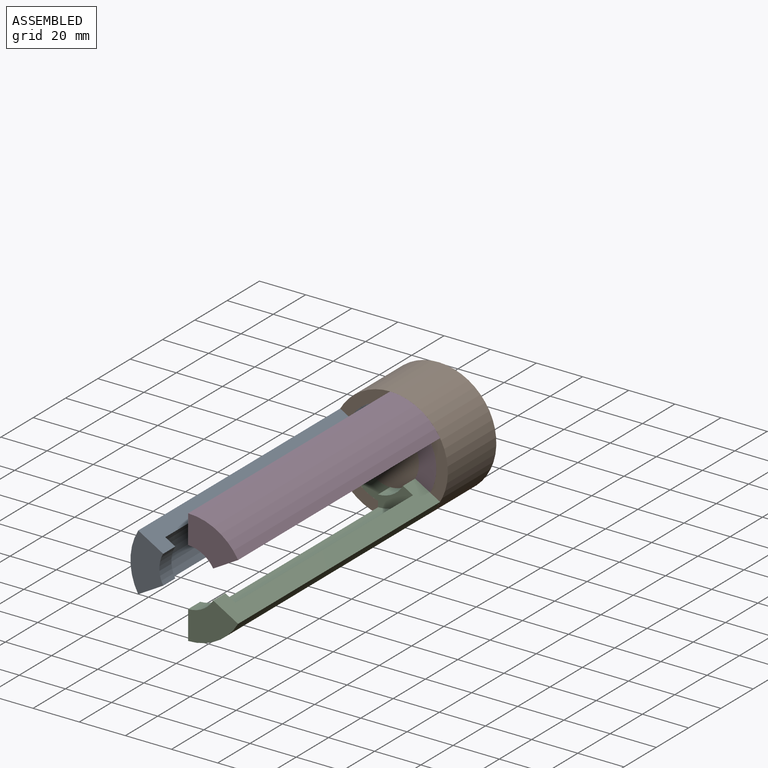
[diagram: assembled view]
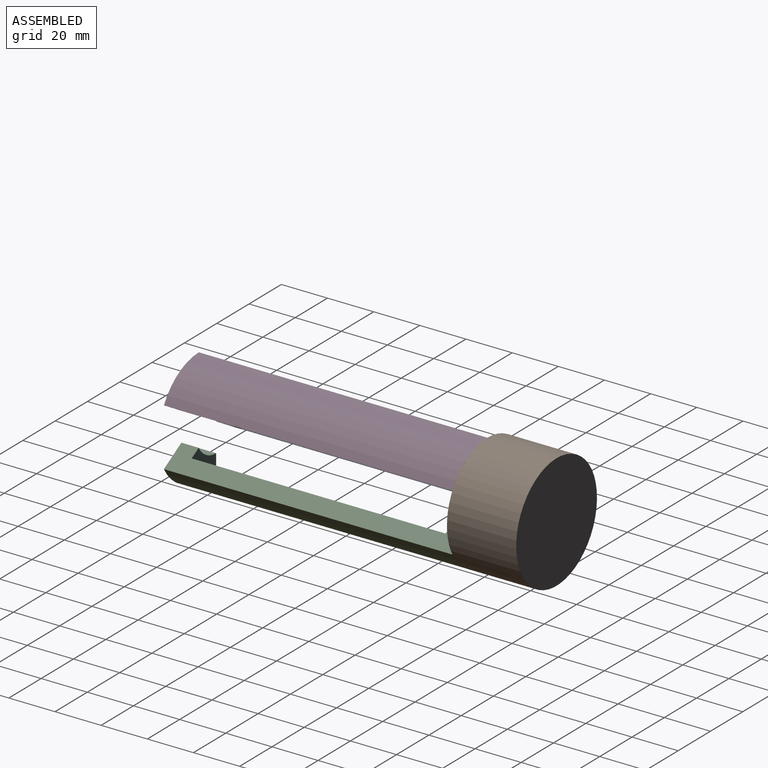
[diagram: assembled view, second angle]
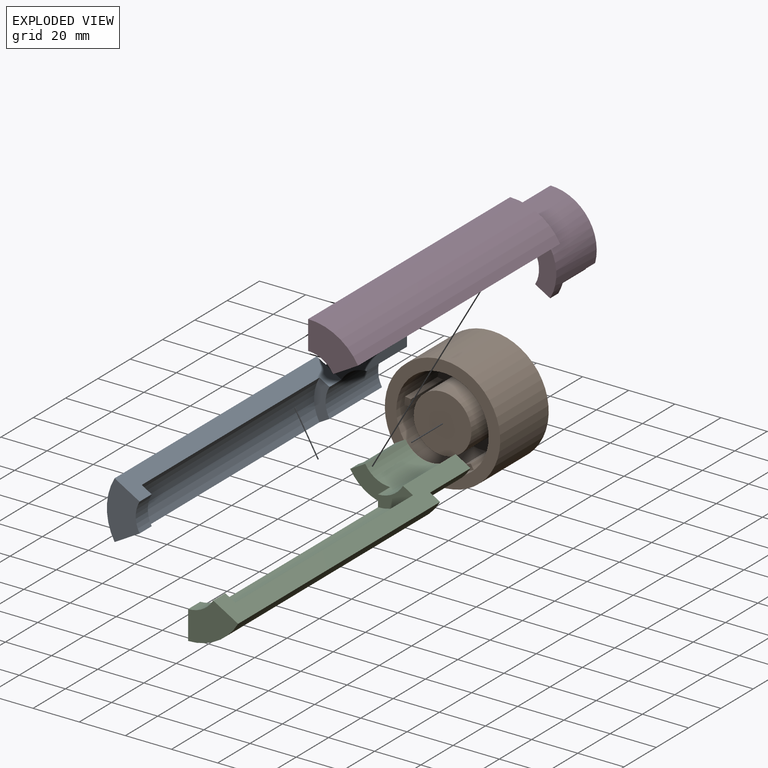
[diagram: exploded view]
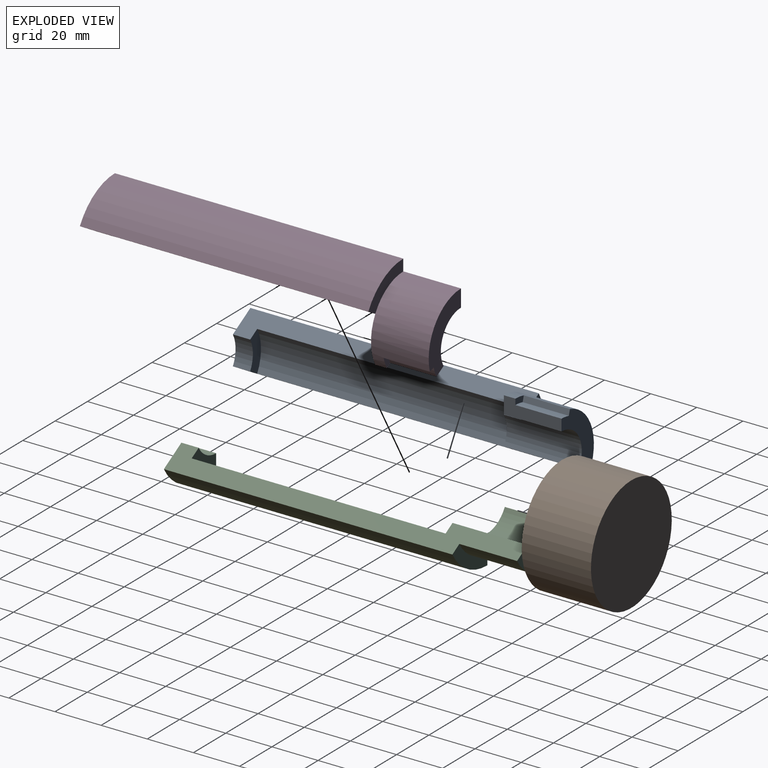
[diagram: exploded view, second angle]
ASSEMBLY  parts=4 mates=3
PART A: 17 faces, bbox 32.5x150x25 mm
  f0: cylinder r=20mm len=30mm, axis (0,1,0), area 942.5mm2, adj f1,f4,f7,f8,f10,f15,f16
  f1: plane 150x10.83mm, normal (0.87,0,0.5), area 1200mm2, adj f0,f2,f5,f6,f7,f8,f9,f11
  f2: cylinder r=12.5mm len=32.5mm, axis (0,1,0), area 752.7mm2, adj f1,f3,f4,f7,f10,f12
  f3: plane 125x10.83mm, normal (-0.87,0,0.5), area 1012.5mm2, adj f2,f5,f6,f8,f9,f10,f11,f12
  f4: plane 25x7.5mm, normal (0,0,1), area 137.5mm2, adj f0,f2,f7,f10,f14,f16
  f5: plane 25x14.17mm, normal (0,-1,0), area 245.4mm2, adj f1,f3,f6,f9
  f6: cylinder r=25mm len=125mm, axis (0,1,0), area 3272.5mm2, adj f1,f3,f5,f8
  f7: plane 29.32x20mm, normal (0,1,0), area 243mm2, adj f0,f1,f2,f4,f14,f15
  f8: plane 25x7.68mm, normal (0,1,0), area 117.8mm2, adj f0,f1,f3,f6
  f9: cylinder r=12.5mm len=12.5mm, axis (0,1,0), area 98.2mm2, adj f1,f3,f5,f13
  f10: plane 17.32x13.75mm, normal (0,-1,0), area 127.6mm2, adj f0,f2,f3,f4
  f11: cylinder r=17.5mm len=110mm, axis (0,-1,0), area 2015.9mm2, adj f1,f3,f12,f13
  f12: plane 17.5x6.67mm, normal (0,-1,0), area 78.5mm2, adj f1,f2,f3,f11
  f13: plane 17.5x6.67mm, normal (0,1,0), area 78.5mm2, adj f1,f3,f9,f11
  f14: cylinder r=17.5mm len=20mm, axis (0,1,0), area 91.6mm2, adj f4,f7,f15,f16
  f15: plane 20x2.42mm, normal (-0.26,0,0.97), area 50mm2, adj f0,f7,f14,f16
  f16: plane 5.18x3.1mm, normal (0,1,0), area 12.3mm2, adj f0,f4,f14,f15
PART B: 19 faces, bbox 50x30x50 mm
  f0: cylinder r=20mm len=40mm, axis (0,1,0), area 2932.2mm2, adj f3,f4,f5,f7,f8,f9,f11,f12
  f1: cylinder r=25mm len=50mm, axis (0,1,0), area 4712.4mm2, adj f2,f3
  f2: plane 50x50mm, normal (0,-1,0), area 1963.5mm2, adj f1
  f3: plane 50x50mm, normal (0,1,0), area 706.9mm2, adj f0,f1
  f4: plane 40x40mm, normal (0,1,0), area 741.2mm2, adj f0,f5,f6,f7,f9,f10,f11,f13
  f5: plane 20x2.5mm, normal (1,0,0), area 50mm2, adj f0,f4,f6,f8
  f6: cylinder r=17.5mm len=20mm, axis (0,-1,0), area 61.1mm2, adj f4,f5,f7,f8
  f7: plane 20x2.46mm, normal (-0.98,0,-0.17), area 50mm2, adj f0,f4,f6,f8
  f8: plane 3.47x2.77mm, normal (0,1,0), area 8.2mm2, adj f0,f5,f6,f7
  f9: plane 20x2.17mm, normal (-0.5,0,-0.87), area 50mm2, adj f0,f4,f10,f12
  f10: cylinder r=17.5mm len=20mm, axis (0,-1,0), area 61.1mm2, adj f4,f9,f11,f12
  f11: plane 20x2.35mm, normal (0.34,0,0.94), area 50mm2, adj f0,f4,f10,f12
  f12: plane 4.01x3.64mm, normal (0,1,0), area 8.2mm2, adj f0,f9,f10,f11
  f13: plane 20x2.17mm, normal (-0.5,0,0.87), area 50mm2, adj f0,f4,f14,f16
  f14: cylinder r=17.5mm len=20mm, axis (0,-1,0), area 61.1mm2, adj f4,f13,f15,f16
  f15: plane 20x1.92mm, normal (0.64,0,-0.77), area 50mm2, adj f0,f4,f14,f16
  f16: plane 4.11x3.91mm, normal (0,1,0), area 8.2mm2, adj f0,f13,f14,f15
  f17: cylinder r=12.5mm len=25mm, axis (0,-1,0), area 1963.5mm2, adj f4,f18
  f18: plane 25x25mm, normal (0,1,0), area 490.9mm2, adj f17
PART C: same geometry as A
PART D: same geometry as A
PLACE A rot(axis=(0,1,0),90deg) t=(15.81,3.39,-26.06)mm
PLACE B rot(axis=(0.97,0,0.26),180deg) t=(15.81,-21.61,-26.06)mm
PLACE C rot(axis=(0,-1,0),30deg) t=(15.81,3.39,-26.06)mm
PLACE D rot(axis=(0,-1,0),150deg) t=(15.81,3.39,-26.06)mm
MATE cylindrical B.f0 <-> C.f2  axis (0,-1,0) through (15.81,3.39,-26.06)mm
MATE fastened C.f4 <-> A.f1  axis (-0.5,0,0.87) through (4.99,3.39,-32.31)mm
MATE fastened C.f1 <-> D.f4  axis (0.5,0,0.87) through (26.64,3.39,-32.31)mm
